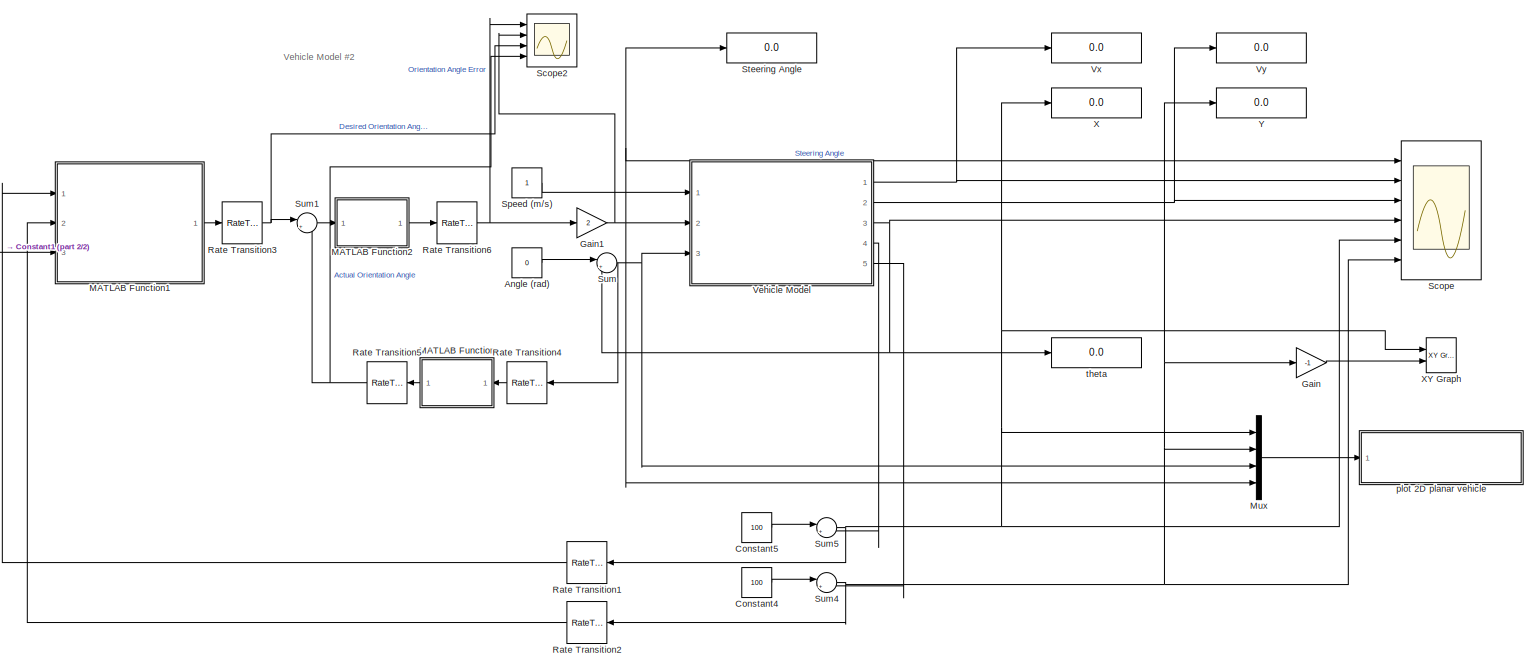
[diagram: root canvas - part 1/2, most of the canvas]
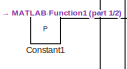
[diagram: root canvas - part 2/2, middle left region]
MODEL slx_1d11076717c5
KIND model
CONFIG AbsTol = auto
CONFIG FixedStep = 1e-1
CONFIG MaxStep = auto
CONFIG MinStep = auto
CONFIG RelTol = 1e-3
CONFIG SampleTimeConstraint = Unconstrained
CONFIG Solver = ode3
CONFIG SolverMode = Auto
CONFIG SolverName = ode3
CONFIG StartTime = 0.0
CONFIG StopTime = 360
BLOCK [Constant] Angle (rad)
  Value = 0
BLOCK [Constant] Constant1
  Value = P
BLOCK [Constant] Constant4
  Value = 100
BLOCK [Constant] Constant5
  Value = 100
BLOCK [Gain] Gain
  Gain = -1
  OutDataTypeStr = Inherit: Inherit via internal rule
  ParamDataTypeStr = Inherit: Inherit via internal rule
  SaturateOnIntegerOverflow = off
BLOCK [Gain] Gain1
  Gain = 2
  OutDataTypeStr = Inherit: Inherit via internal rule
  ParamDataTypeStr = Inherit: Inherit via internal rule
  SaturateOnIntegerOverflow = off
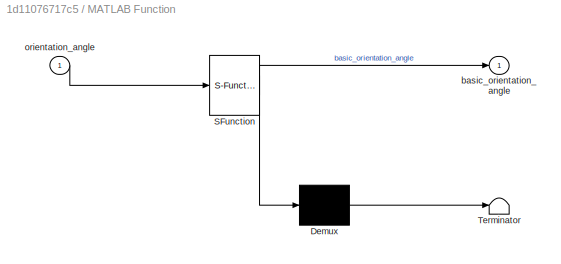
BLOCK [SubSystem] MATLAB Function
  ErrorFcn = Stateflow.Translate.translate
  PermitHierarchicalResolution = ExplicitOnly
  Ports = [1, 1]
  RequestExecContextInheritance = off
  SFBlockType = MATLAB Function
  TreatAsAtomicUnit = on
BLOCK [Demux] MATLAB Function/ Demux 
  Outputs = 1
  Ports = [1, 1]
BLOCK [S-Function] MATLAB Function/ SFunction 
  EnableBusSupport = on
  FunctionName = sf_sfun
  PortCounts = [1 2]
  Ports = [1, 2]
  Tag = Stateflow S-Function vehicle_model_v3 2
BLOCK [Terminator] MATLAB Function/ Terminator 
BLOCK [Outport] MATLAB Function/basic_orientation_angle
  IconDisplay = Port number
BLOCK [Inport] MATLAB Function/orientation_angle
  IconDisplay = Port number
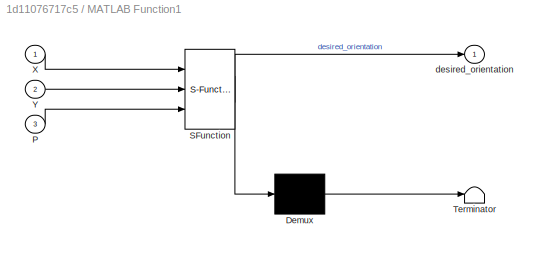
BLOCK [SubSystem] MATLAB Function1
  ErrorFcn = Stateflow.Translate.translate
  PermitHierarchicalResolution = ExplicitOnly
  Ports = [3, 1]
  RequestExecContextInheritance = off
  SFBlockType = MATLAB Function
  TreatAsAtomicUnit = on
BLOCK [Demux] MATLAB Function1/ Demux 
  Outputs = 1
  Ports = [1, 1]
BLOCK [S-Function] MATLAB Function1/ SFunction 
  EnableBusSupport = on
  FunctionName = sf_sfun
  PortCounts = [3 2]
  Ports = [3, 2]
  Tag = Stateflow S-Function vehicle_model_v3 1
BLOCK [Terminator] MATLAB Function1/ Terminator 
BLOCK [Inport] MATLAB Function1/P
  IconDisplay = Port number
  Port = 3
BLOCK [Inport] MATLAB Function1/X
  IconDisplay = Port number
BLOCK [Inport] MATLAB Function1/Y
  IconDisplay = Port number
  Port = 2
BLOCK [Outport] MATLAB Function1/desired_orientation
  IconDisplay = Port number
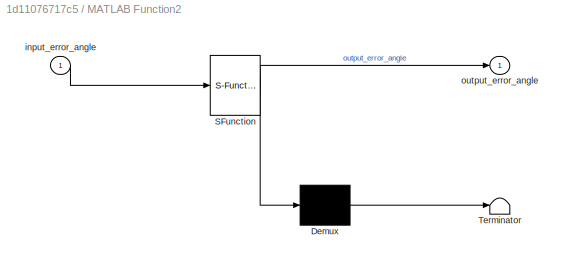
BLOCK [SubSystem] MATLAB Function2
  ErrorFcn = Stateflow.Translate.translate
  PermitHierarchicalResolution = ExplicitOnly
  Ports = [1, 1]
  RequestExecContextInheritance = off
  SFBlockType = MATLAB Function
  TreatAsAtomicUnit = on
BLOCK [Demux] MATLAB Function2/ Demux 
  Outputs = 1
  Ports = [1, 1]
BLOCK [S-Function] MATLAB Function2/ SFunction 
  EnableBusSupport = on
  FunctionName = sf_sfun
  PortCounts = [1 2]
  Ports = [1, 2]
  Tag = Stateflow S-Function vehicle_model_v3 3
BLOCK [Terminator] MATLAB Function2/ Terminator 
BLOCK [Inport] MATLAB Function2/input_error_angle
  IconDisplay = Port number
BLOCK [Outport] MATLAB Function2/output_error_angle
  IconDisplay = Port number
BLOCK [Mux] Mux
  DisplayOption = bar
  Ports = [4, 1]
BLOCK [RateTransition] Rate Transition1
BLOCK [RateTransition] Rate Transition2
BLOCK [RateTransition] Rate Transition3
BLOCK [RateTransition] Rate Transition4
BLOCK [RateTransition] Rate Transition5
BLOCK [RateTransition] Rate Transition6
BLOCK [Scope] Scope
  DataFormat = StructureWithTime
  Floating = off
  LimitDataPoints = off
  NumInputPorts = 6
  Ports = [6]
  SaveName = ScopeData1
  YMax = 0.01625~1.22981~0.125~0.32067~78.0999~14.88135
  YMin = -0.14625~-1.06831~-1.125~-2.88599~13.54446~-133.93215
  ZoomMode = xonly
BLOCK [Scope] Scope2
  Floating = off
  NumInputPorts = 4
  Ports = [4]
  SaveName = ScopeData2
  YMax = 3.5~0~7~1.25
  YMin = 0~-0.35~0~0
BLOCK [Constant] Speed (m//s)
BLOCK [Display] Steering Angle
  Decimation = 1
  Ports = [1]
BLOCK [Sum] Sum
  IconShape = round
  InputSameDT = off
  Inputs = |++
  OutDataTypeStr = Inherit: Inherit via internal rule
  Ports = [2, 1]
  SaturateOnIntegerOverflow = off
BLOCK [Sum] Sum1
  IconShape = round
  InputSameDT = off
  Inputs = |+-
  OutDataTypeStr = Inherit: Inherit via internal rule
  Ports = [2, 1]
  SaturateOnIntegerOverflow = off
BLOCK [Sum] Sum4
  IconShape = round
  InputSameDT = off
  Inputs = |++
  OutDataTypeStr = Inherit: Inherit via internal rule
  Ports = [2, 1]
  SaturateOnIntegerOverflow = off
BLOCK [Sum] Sum5
  IconShape = round
  InputSameDT = off
  Inputs = |++
  OutDataTypeStr = Inherit: Inherit via internal rule
  Ports = [2, 1]
  SaturateOnIntegerOverflow = off
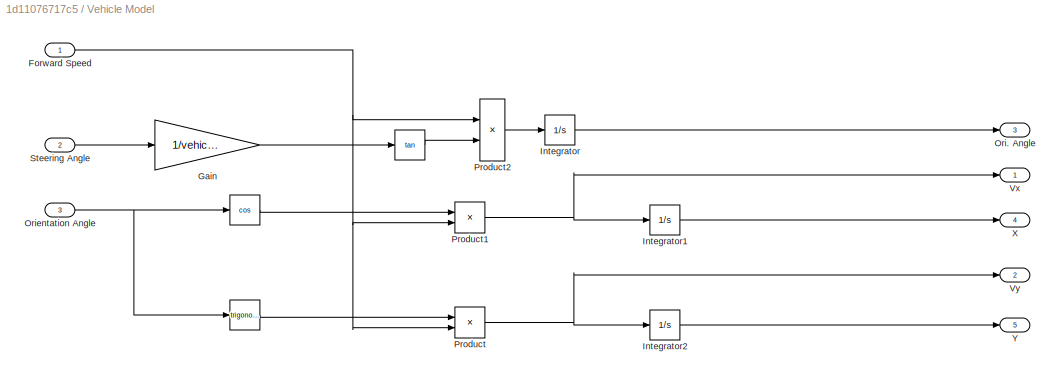
BLOCK [SubSystem] Vehicle Model
  Ports = [3, 5]
  RequestExecContextInheritance = off
BLOCK [Trigonometry] Vehicle Model/ 
  Operator = cos
  Ports = [1, 1]
BLOCK [Trigonometry] Vehicle Model/  
  Ports = [1, 1]
BLOCK [Trigonometry] Vehicle Model/    
  Operator = tan
  Ports = [1, 1]
BLOCK [Inport] Vehicle Model/Forward Speed
  IconDisplay = Port number
BLOCK [Gain] Vehicle Model/Gain
  Gain = 1/vehicle_length
  OutDataTypeStr = Inherit: Inherit via internal rule
  ParamDataTypeStr = Inherit: Inherit via internal rule
  SaturateOnIntegerOverflow = off
BLOCK [Integrator] Vehicle Model/Integrator
  Ports = [1, 1]
BLOCK [Integrator] Vehicle Model/Integrator1
  Ports = [1, 1]
BLOCK [Integrator] Vehicle Model/Integrator2
  Ports = [1, 1]
BLOCK [Outport] Vehicle Model/Ori. Angle
  IconDisplay = Port number
  Port = 3
BLOCK [Inport] Vehicle Model/Orientation Angle
  IconDisplay = Port number
  Port = 3
BLOCK [Product] Vehicle Model/Product
  InputSameDT = off
  OutDataTypeStr = Inherit: Inherit via internal rule
  Ports = [2, 1]
  RndMeth = Floor
  SaturateOnIntegerOverflow = off
BLOCK [Product] Vehicle Model/Product1
  InputSameDT = off
  OutDataTypeStr = Inherit: Inherit via internal rule
  Ports = [2, 1]
  RndMeth = Floor
  SaturateOnIntegerOverflow = off
BLOCK [Product] Vehicle Model/Product2
  InputSameDT = off
  OutDataTypeStr = Inherit: Inherit via internal rule
  Ports = [2, 1]
  RndMeth = Floor
  SaturateOnIntegerOverflow = off
BLOCK [Inport] Vehicle Model/Steering Angle
  IconDisplay = Port number
  Port = 2
BLOCK [Outport] Vehicle Model/Vx
  IconDisplay = Port number
BLOCK [Outport] Vehicle Model/Vy
  IconDisplay = Port number
  Port = 2
BLOCK [Outport] Vehicle Model/X
  IconDisplay = Port number
  Port = 4
BLOCK [Outport] Vehicle Model/Y
  IconDisplay = Port number
  Port = 5
BLOCK [Display] Vx
  Decimation = 1
  Ports = [1]
BLOCK [Display] Vy
  Decimation = 1
  Ports = [1]
BLOCK [Display] X
  Decimation = 1
  Ports = [1]
BLOCK [Reference] XY Graph  REF=simulink/Sinks/XY Graph
  Ports = [2]
  SourceBlock = simulink/Sinks/XY Graph
  SourceType = XY scope.
  st = -1
  xmax = 180
  xmin = -60
  ymax = 40
  ymin = -100
BLOCK [Display] Y
  Decimation = 1
  Ports = [1]
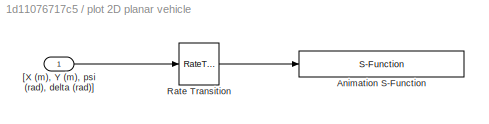
BLOCK [SubSystem] plot 2D planar vehicle
  Ports = [1]
  RequestExecContextInheritance = off
BLOCK [S-Function] plot 2D planar vehicle/Animation S-Function
  FunctionName = sanim_XY_vehicle_viz
  Parameters = Config
  Ports = [1]
BLOCK [RateTransition] plot 2D planar vehicle/Rate Transition
  Integrity = off
BLOCK [Inport] plot 2D planar vehicle/[X (m), Y (m), psi (rad), delta (rad)]
  IconDisplay = Port number
BLOCK [Display] theta
  Decimation = 1
  Ports = [1]
ANNOTATION (root): Vehicle Model #2
LINE Angle (rad):1 -> Sum:1
LINE Constant1:1 -> MATLAB Function1:3
LINE Constant4:1 -> Sum4:1
LINE Constant5:1 -> Sum5:1
NET Gain1:1 -> Mux:4, Scope2:2, Scope:1, Steering Angle:1, Vehicle Model:2
LINE Gain:1 -> XY Graph:2
LINE MATLAB Function1:1 -> Rate Transition3:1
LINE MATLAB Function2:1 -> Rate Transition6:1
LINE MATLAB Function:1 -> Rate Transition5:1
LINE Mux:1 -> plot 2D planar vehicle:1
LINE Rate Transition1:1 -> MATLAB Function1:1
LINE Rate Transition2:1 -> MATLAB Function1:2
NET Rate Transition3:1 -> Scope2:3, Sum1:1
LINE Rate Transition4:1 -> MATLAB Function:1
NET Rate Transition5:1 -> Scope2:4, Sum1:2
NET Rate Transition6:1 -> Gain1:1, Scope2:1
LINE Speed (m//s):1 -> Vehicle Model:1
LINE Sum1:1 -> MATLAB Function2:1
NET Sum4:1 -> Gain:1, Mux:2, Rate Transition2:1, Scope:6, Y:1
NET Sum5:1 -> Mux:1, Rate Transition1:1, Scope:5, X:1, XY Graph:1
NET Sum:1 -> Mux:3, Rate Transition4:1, Vehicle Model:3
LINE Vehicle Model/    :1 -> Vehicle Model/Product2:2
LINE Vehicle Model/  :1 -> Vehicle Model/Product:1
LINE Vehicle Model/ :1 -> Vehicle Model/Product1:1
NET Vehicle Model/Forward Speed:1 -> Vehicle Model/Product1:2, Vehicle Model/Product2:1, Vehicle Model/Product:2
LINE Vehicle Model/Gain:1 -> Vehicle Model/    :1
LINE Vehicle Model/Integrator1:1 -> Vehicle Model/X:1
LINE Vehicle Model/Integrator2:1 -> Vehicle Model/Y:1
LINE Vehicle Model/Integrator:1 -> Vehicle Model/Ori. Angle:1
NET Vehicle Model/Orientation Angle:1 -> Vehicle Model/  :1, Vehicle Model/ :1
NET Vehicle Model/Product1:1 -> Vehicle Model/Integrator1:1, Vehicle Model/Vx:1
LINE Vehicle Model/Product2:1 -> Vehicle Model/Integrator:1
NET Vehicle Model/Product:1 -> Vehicle Model/Integrator2:1, Vehicle Model/Vy:1
LINE Vehicle Model/Steering Angle:1 -> Vehicle Model/Gain:1
NET Vehicle Model:1 -> Scope:2, Vx:1
NET Vehicle Model:2 -> Scope:3, Vy:1
NET Vehicle Model:3 -> Scope:4, Sum:2, theta:1
LINE Vehicle Model:4 -> Sum5:2
LINE Vehicle Model:5 -> Sum4:2
LINE plot 2D planar vehicle/Rate Transition:1 -> plot 2D planar vehicle/Animation S-Function:1
LINE plot 2D planar vehicle/[X (m), Y (m), psi (rad), delta (rad)]:1 -> plot 2D planar vehicle/Rate Transition:1
note: NET lines group one-source signal fan-out (src -> all destinations, sorted); 1:1 wires keep LINE
CHART MATLAB Function1 states=1 transitions=1
  STATE_LABEL 'eML_blk_kernel()'
  STATE_LABEL 'SCRIPT:\nfunction desired_orientation = calculate_desired_orientation(X,Y,P)\n\nlook_ahead_distance = 3;\n\ncurrent_position = [Y,X];\n\n[closest,closest_index] = find_closest_path_coordinate(P,current_position);\n\ndesired_vector_head_point = P(closest_index + look_ahead_distance,:);\ndesired_vector_tail_point = current_position;\n\ndesired_orientation = find_angle(desired_vector_head_point,desired_vector_ta...<+94ch>'
CHART MATLAB Function states=1 transitions=1
  STATE_LABEL 'eML_blk_kernel()'
  STATE_LABEL 'SCRIPT:\nfunction basic_orientation_angle = get_basic_orientation_angle(orientation_angle)\n\nif orientation_angle < 0\n    while orientation_angle<0\n        orientation_angle = orientation_angle + 2*pi;\n    end\nelseif orientation_angle >= 2*pi\n    while orientation_angle>=2*pi\n        orientation_angle = orientation_angle - 2*pi;\n    end\nend\nbasic_orientation_angle = orientation_angle;\nend'
CHART MATLAB Function2 states=1 transitions=1
  STATE_LABEL 'eML_blk_kernel()'
  STATE_LABEL 'SCRIPT:\nfunction output_error_angle = angle_error_correction(input_error_angle)\n%output_error_angle = input_error_angle;\nif input_error_angle<-pi\n    output_error_angle =  input_error_angle + 2*pi;\nelseif input_error_angle>pi\n    output_error_angle = input_error_angle - 2*pi;\nelse\n    output_error_angle = input_error_angle;\nend\n\nend'
